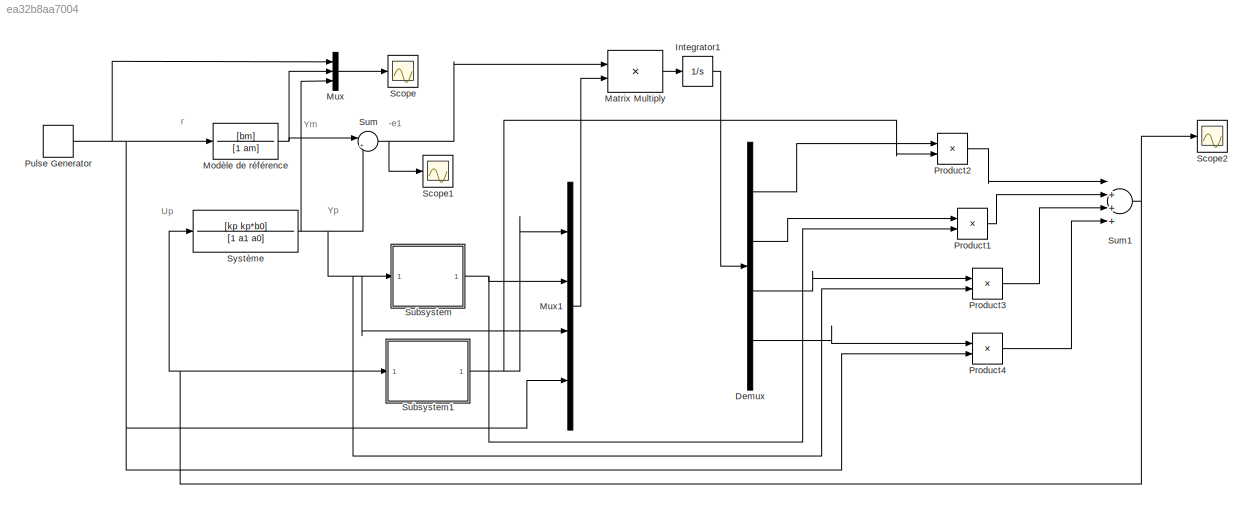
MODEL slx_ea32b8aa7004
KIND model
CONFIG AbsTol = auto
CONFIG FixedStep = auto
CONFIG MaxStep = auto
CONFIG MinStep = auto
CONFIG RelTol = 1e-3
CONFIG SampleTimeConstraint = Unconstrained
CONFIG Solver = ode45
CONFIG SolverMode = Auto
CONFIG SolverName = ode45
CONFIG StartTime = 0.0
CONFIG StopTime = 100
BLOCK [Demux] Demux
  DisplayOption = bar
  Ports = [1, 4]
BLOCK [Integrator] Integrator1
  InitialCondition = 0.01
  Ports = [1, 1]
BLOCK [Product] Matrix Multiply
  InputSameDT = off
  Multiplication = Matrix(*)
  OutDataTypeStr = Inherit: Inherit via internal rule
  Ports = [2, 1]
  RndMeth = Floor
  SaturateOnIntegerOverflow = off
BLOCK [TransferFcn] Modèle de référence
  Denominator = [1 am]
  Numerator = [bm]
BLOCK [Mux] Mux
  DisplayOption = bar
  Inputs = 3
  Ports = [3, 1]
BLOCK [Mux] Mux1
  DisplayOption = bar
  Ports = [4, 1]
BLOCK [Product] Product1
  InputSameDT = off
  OutDataTypeStr = Inherit: Inherit via internal rule
  Ports = [2, 1]
  RndMeth = Floor
  SaturateOnIntegerOverflow = off
BLOCK [Product] Product2
  InputSameDT = off
  OutDataTypeStr = Inherit: Inherit via internal rule
  Ports = [2, 1]
  RndMeth = Floor
  SaturateOnIntegerOverflow = off
BLOCK [Product] Product3
  InputSameDT = off
  OutDataTypeStr = Inherit: Inherit via internal rule
  Ports = [2, 1]
  RndMeth = Floor
  SaturateOnIntegerOverflow = off
BLOCK [Product] Product4
  InputSameDT = off
  OutDataTypeStr = Inherit: Inherit via internal rule
  Ports = [2, 1]
  RndMeth = Floor
  SaturateOnIntegerOverflow = off
BLOCK [DiscretePulseGenerator] Pulse Generator
  Period = 20
  Ports = [0, 1]
  PulseType = Time based
  PulseWidth = 50
BLOCK [Scope] Scope
  Ports = [1]
  ScopeSpecificationString = Simulink.scopes.TimeScopeBlockCfg('CurrentConfiguration', extmgr.ConfigurationSet(extmgr.Configuration('Core','General UI',true,'FigureColor',[1 1 1]),extmgr.Configuration('Core','Source UI',true),extmgr.Configuration('Sources','WiredSimulink',true,'DataLoggingLimitDataPoints',true,'DataLoggingSaveFormat','Array','DataLoggingDecimation','1','DataLoggingDecimateData',true),extmgr.Configuration('Vis...<+2852ch>
BLOCK [Scope] Scope1
  Ports = [1]
  ScopeSpecificationString = Simulink.scopes.TimeScopeBlockCfg('CurrentConfiguration', extmgr.ConfigurationSet(extmgr.Configuration('Core','General UI',true,'FigureColor',[0.501960784313725 0.501960784313725 0.501960784313725]),extmgr.Configuration('Core','Source UI',true),extmgr.Configuration('Sources','WiredSimulink',true,'DataLoggingVariableName','ScopeData1','DataLoggingLimitDataPoints',true,'DataLoggingSaveFormat','Array...<+2930ch>
BLOCK [Scope] Scope2
  Ports = [1]
  ScopeSpecificationString = Simulink.scopes.TimeScopeBlockCfg('CurrentConfiguration', extmgr.ConfigurationSet(extmgr.Configuration('Core','General UI',true,'FigureColor',[1 1 1]),extmgr.Configuration('Core','Source UI',true),extmgr.Configuration('Sources','WiredSimulink',true,'DataLoggingVariableName','ScopeData2','DataLoggingLimitDataPoints',true,'DataLoggingSaveFormat','Array','DataLoggingDecimation','1','DataLoggingDecima...<+2876ch>
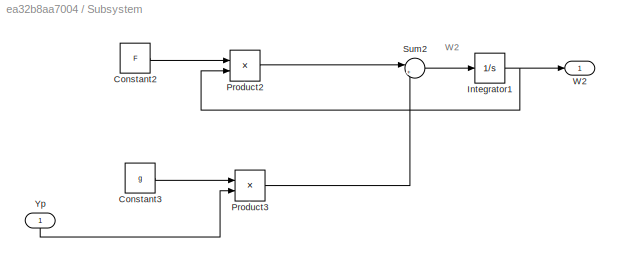
BLOCK [SubSystem] Subsystem
  Ports = [1, 1]
  RequestExecContextInheritance = off
  Variant = off
BLOCK [Constant] Subsystem/Constant2
  Value = F
BLOCK [Constant] Subsystem/Constant3
  Value = g
BLOCK [Integrator] Subsystem/Integrator1
  Ports = [1, 1]
BLOCK [Product] Subsystem/Product2
  InputSameDT = off
  OutDataTypeStr = Inherit: Inherit via internal rule
  Ports = [2, 1]
  RndMeth = Floor
  SaturateOnIntegerOverflow = off
BLOCK [Product] Subsystem/Product3
  InputSameDT = off
  OutDataTypeStr = Inherit: Inherit via internal rule
  Ports = [2, 1]
  RndMeth = Floor
  SaturateOnIntegerOverflow = off
BLOCK [Sum] Subsystem/Sum2
  IconShape = round
  InputSameDT = off
  Inputs = |++
  OutDataTypeStr = Inherit: Inherit via internal rule
  Ports = [2, 1]
  SaturateOnIntegerOverflow = off
BLOCK [Outport] Subsystem/W2
  IconDisplay = Port number
BLOCK [Inport] Subsystem/Yp
  IconDisplay = Port number
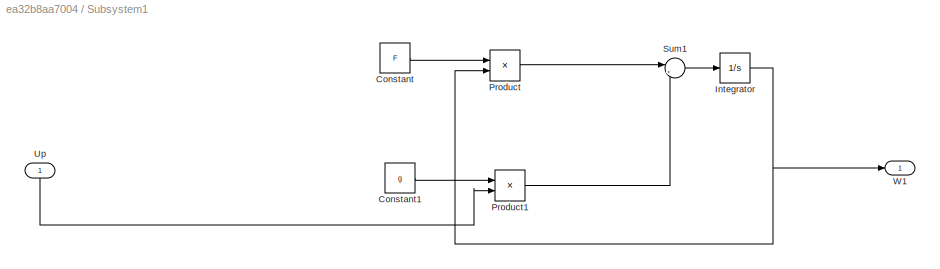
BLOCK [SubSystem] Subsystem1
  Ports = [1, 1]
  RequestExecContextInheritance = off
  Variant = off
BLOCK [Constant] Subsystem1/Constant
  Value = F
BLOCK [Constant] Subsystem1/Constant1
  Value = g
BLOCK [Integrator] Subsystem1/Integrator
  Ports = [1, 1]
BLOCK [Product] Subsystem1/Product
  InputSameDT = off
  OutDataTypeStr = Inherit: Inherit via internal rule
  Ports = [2, 1]
  RndMeth = Floor
  SaturateOnIntegerOverflow = off
BLOCK [Product] Subsystem1/Product1
  InputSameDT = off
  OutDataTypeStr = Inherit: Inherit via internal rule
  Ports = [2, 1]
  RndMeth = Floor
  SaturateOnIntegerOverflow = off
BLOCK [Sum] Subsystem1/Sum1
  IconShape = round
  InputSameDT = off
  Inputs = |++
  OutDataTypeStr = Inherit: Inherit via internal rule
  Ports = [2, 1]
  SaturateOnIntegerOverflow = off
BLOCK [Inport] Subsystem1/Up
  IconDisplay = Port number
BLOCK [Outport] Subsystem1/W1
  IconDisplay = Port number
BLOCK [Sum] Sum
  IconShape = round
  InputSameDT = off
  Inputs = |+-
  OutDataTypeStr = Inherit: Inherit via internal rule
  Ports = [2, 1]
  SaturateOnIntegerOverflow = off
BLOCK [Sum] Sum1
  InputSameDT = off
  Inputs = |++++
  OutDataTypeStr = Inherit: Inherit via internal rule
  Ports = [4, 1]
  SaturateOnIntegerOverflow = off
BLOCK [TransferFcn] Système
  Denominator = [1 a1 a0]
  Numerator = [kp kp*b0]
ANNOTATION (root): -e1
ANNOTATION (root): Up
ANNOTATION (root): Ym
ANNOTATION (root): Yp
ANNOTATION (root): r
ANNOTATION Subsystem: W2
LINE Demux:1 -> Product2:1
LINE Demux:2 -> Product1:1
LINE Demux:3 -> Product3:1
LINE Demux:4 -> Product4:1
LINE Integrator1:1 -> Demux:1
LINE Matrix Multiply:1 -> Integrator1:1
NET Modèle de référence:1 -> Mux:2, Sum:1
LINE Mux1:1 -> Matrix Multiply:2
LINE Mux:1 -> Scope:1
LINE Product1:1 -> Sum1:2
LINE Product2:1 -> Sum1:1
LINE Product3:1 -> Sum1:3
LINE Product4:1 -> Sum1:4
NET Pulse Generator:1 -> Modèle de référence:1, Mux1:4, Mux:1, Product4:2
LINE Subsystem/Constant2:1 -> Subsystem/Product2:1
LINE Subsystem/Constant3:1 -> Subsystem/Product3:1
NET Subsystem/Integrator1:1 -> Subsystem/Product2:2, Subsystem/W2:1
LINE Subsystem/Product2:1 -> Subsystem/Sum2:1
LINE Subsystem/Product3:1 -> Subsystem/Sum2:2
LINE Subsystem/Sum2:1 -> Subsystem/Integrator1:1
LINE Subsystem/Yp:1 -> Subsystem/Product3:2
LINE Subsystem1/Constant1:1 -> Subsystem1/Product1:1
LINE Subsystem1/Constant:1 -> Subsystem1/Product:1
NET Subsystem1/Integrator:1 -> Subsystem1/Product:2, Subsystem1/W1:1
LINE Subsystem1/Product1:1 -> Subsystem1/Sum1:2
LINE Subsystem1/Product:1 -> Subsystem1/Sum1:1
LINE Subsystem1/Sum1:1 -> Subsystem1/Integrator:1
LINE Subsystem1/Up:1 -> Subsystem1/Product1:2
NET Subsystem1:1 -> Mux1:1, Product2:2
NET Subsystem:1 -> Mux1:2, Product1:2
NET Sum1:1 -> Scope2:1, Subsystem1:1, Système:1
NET Sum:1 -> Matrix Multiply:1, Scope1:1
NET Système:1 -> Mux1:3, Mux:3, Product3:2, Subsystem:1, Sum:2
note: NET lines group one-source signal fan-out (src -> all destinations, sorted); 1:1 wires keep LINE
